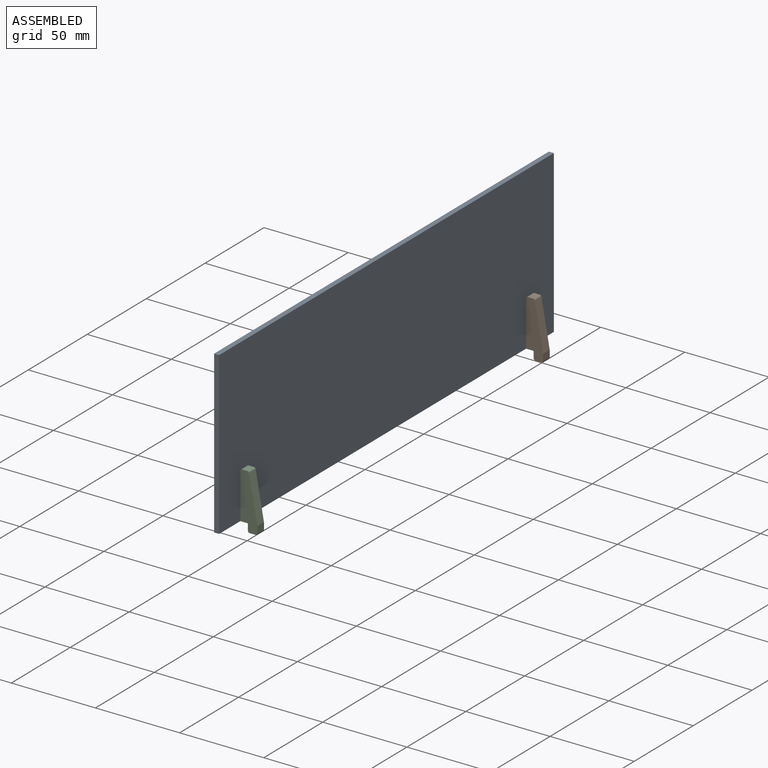
[diagram: assembled view]
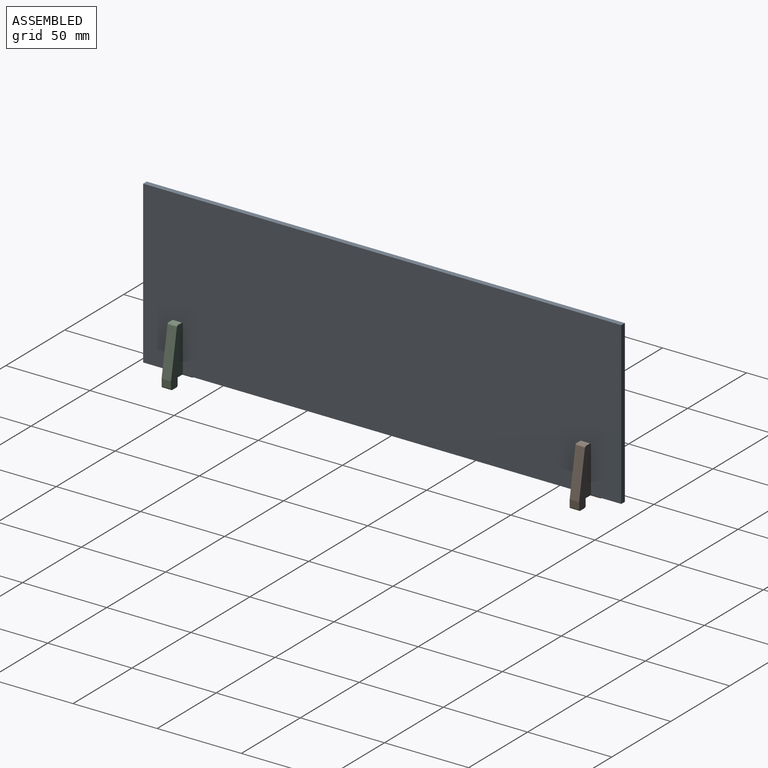
[diagram: assembled view, second angle]
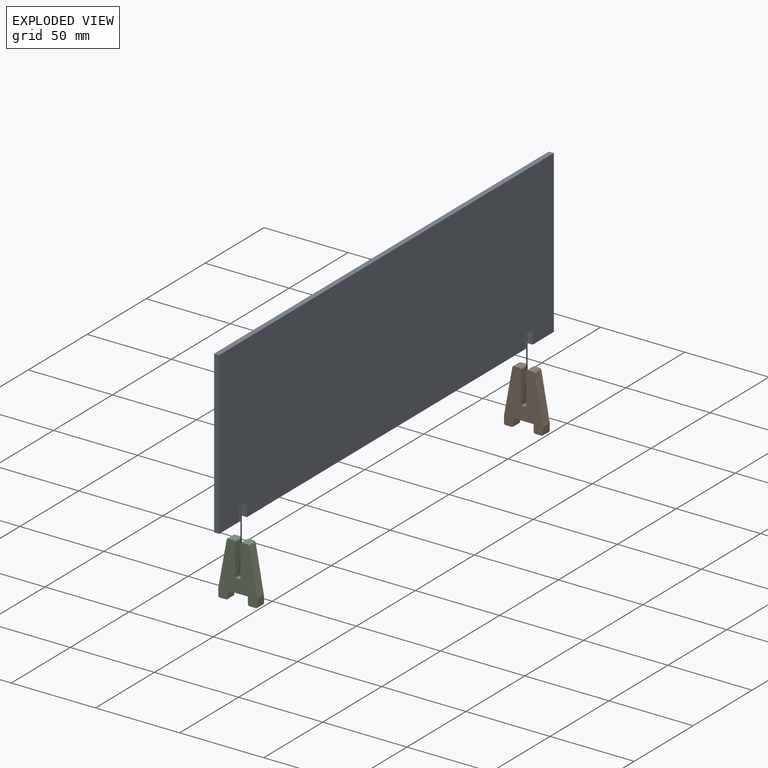
[diagram: exploded view]
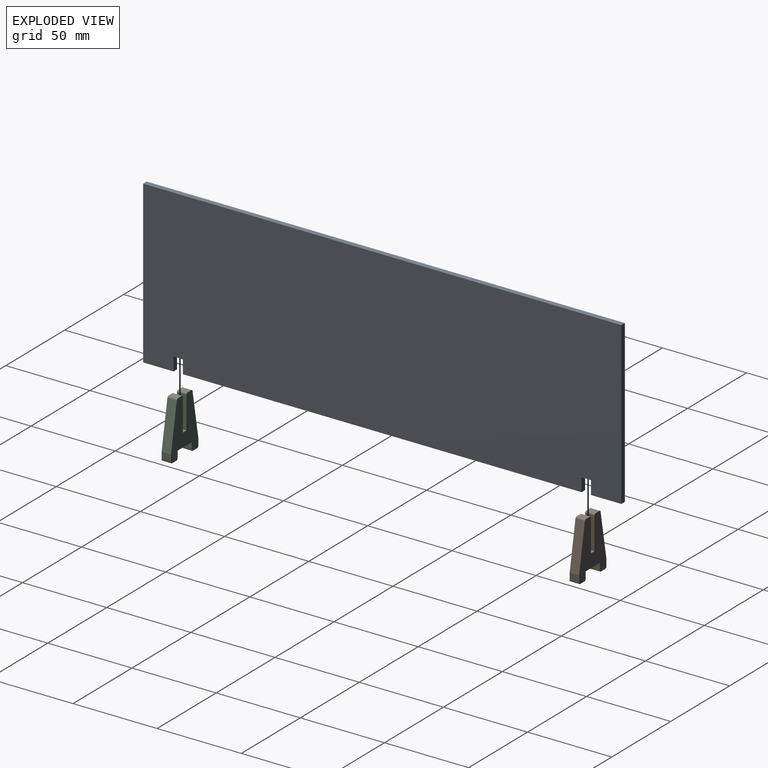
[diagram: exploded view, second angle]
ASSEMBLY  parts=3 mates=2
PART A: 14 faces, bbox 3x284x96 mm
  f0: plane 8x3mm, normal (0,1,0), area 24mm2, adj f1,f11,f12,f13
  f1: plane 5.6x3mm, normal (0,0,-1), area 16.8mm2, adj f0,f2,f12,f13
  f2: plane 8x3mm, normal (0,-1,0), area 24mm2, adj f1,f3,f12,f13
  f3: plane 236.8x3mm, normal (0,0,-1), area 710.4mm2, adj f2,f4,f12,f13
  f4: plane 8x3mm, normal (0,1,0), area 24mm2, adj f3,f5,f12,f13
  f5: plane 5.6x3mm, normal (0,0,-1), area 16.8mm2, adj f4,f6,f12,f13
  f6: plane 8x3mm, normal (0,-1,0), area 24mm2, adj f5,f7,f12,f13
  f7: plane 18x3mm, normal (0,0,-1), area 54mm2, adj f6,f8,f12,f13
  f8: plane 96x3mm, normal (0,1,0), area 288mm2, adj f7,f9,f12,f13
  f9: plane 284x3mm, normal (0,0,1), area 852mm2, adj f8,f10,f12,f13
  f10: plane 96x3mm, normal (0,-1,0), area 288mm2, adj f9,f11,f12,f13
  f11: plane 18x3mm, normal (0,0,-1), area 54mm2, adj f0,f10,f12,f13
  f12: plane 284x96mm, normal (-1,0,0), area 27174.4mm2, adj f0,f1,f2,f3,f4,f5,f6,f7
  f13: plane 284x96mm, normal (1,0,0), area 27174.4mm2, adj f0,f1,f2,f3,f4,f5,f6,f7
PART B: 24 faces, bbox 23.2x5.6x33 mm
  f0: plane 5.6x3.6mm, normal (0,0,-1), area 20.2mm2, adj f1,f21,f22,f23
  f1: cylinder r=1mm len=5.6mm, axis (0,1,0), area 8.8mm2, adj f0,f2,f22,f23
  f2: plane 5.6x4mm, normal (1,0,0), area 22.4mm2, adj f1,f3,f22,f23
  f3: plane 12x5.6mm, normal (0,0,-1), area 67.2mm2, adj f2,f4,f22,f23
  f4: plane 5.6x4mm, normal (-1,0,0), area 22.4mm2, adj f3,f5,f22,f23
  f5: cylinder r=1mm len=5.6mm, axis (0,1,0), area 8.8mm2, adj f4,f6,f22,f23
  f6: plane 5.6x3.6mm, normal (0,0,-1), area 20.2mm2, adj f5,f7,f22,f23
  f7: cylinder r=1mm len=5.6mm, axis (0,1,0), area 8.8mm2, adj f6,f8,f22,f23
  f8: plane 5.6x4mm, normal (1,0,0), area 22.4mm2, adj f7,f9,f22,f23
  f9: plane 27.18x5.6mm, normal (0.98,0,0.18), area 154.7mm2, adj f8,f10,f22,f23
  f10: cylinder r=1mm len=5.6mm, axis (0,1,0), area 7.8mm2, adj f9,f11,f22,f23
  f11: plane 5.6x3.17mm, normal (0,0,1), area 17.7mm2, adj f10,f12,f22,f23
  f12: cylinder r=1mm len=5.6mm, axis (0,1,0), area 8.8mm2, adj f11,f13,f22,f23
  f13: plane 19x5.6mm, normal (-1,0,0), area 106.4mm2, adj f12,f14,f22,f23
  f14: plane 5.6x3mm, normal (0,0,1), area 16.8mm2, adj f13,f15,f22,f23
  f15: plane 19x5.6mm, normal (1,0,0), area 106.4mm2, adj f14,f16,f22,f23
  f16: cylinder r=1mm len=5.6mm, axis (0,1,0), area 8.8mm2, adj f15,f17,f22,f23
  f17: plane 5.6x3.17mm, normal (0,0,1), area 17.7mm2, adj f16,f18,f22,f23
  f18: cylinder r=1mm len=5.6mm, axis (0,1,0), area 7.8mm2, adj f17,f19,f22,f23
  f19: plane 27.18x5.6mm, normal (-0.98,0,0.18), area 154.7mm2, adj f18,f20,f22,f23
  f20: plane 5.6x4mm, normal (-1,0,0), area 22.4mm2, adj f19,f21,f22,f23
  f21: cylinder r=1mm len=5.6mm, axis (0,1,0), area 8.8mm2, adj f0,f20,f22,f23
  f22: plane 33x23.2mm, normal (0,-1,0), area 501.2mm2, adj f0,f1,f2,f3,f4,f5,f6,f7
  f23: plane 33x23.2mm, normal (0,1,0), area 501.2mm2, adj f0,f1,f2,f3,f4,f5,f6,f7
PART C: same geometry as B
PLACE A t=(43,0,0)mm
PLACE B t=(43,-21.2,0)mm
PLACE C t=(43,-263.6,0)mm
MATE fastened B.f14 <-> A.f5  axis (0,0,1) through (43,-24,11)mm
MATE fastened C.f14 <-> A.f1  axis (0,0,1) through (43,-266.4,11)mm
